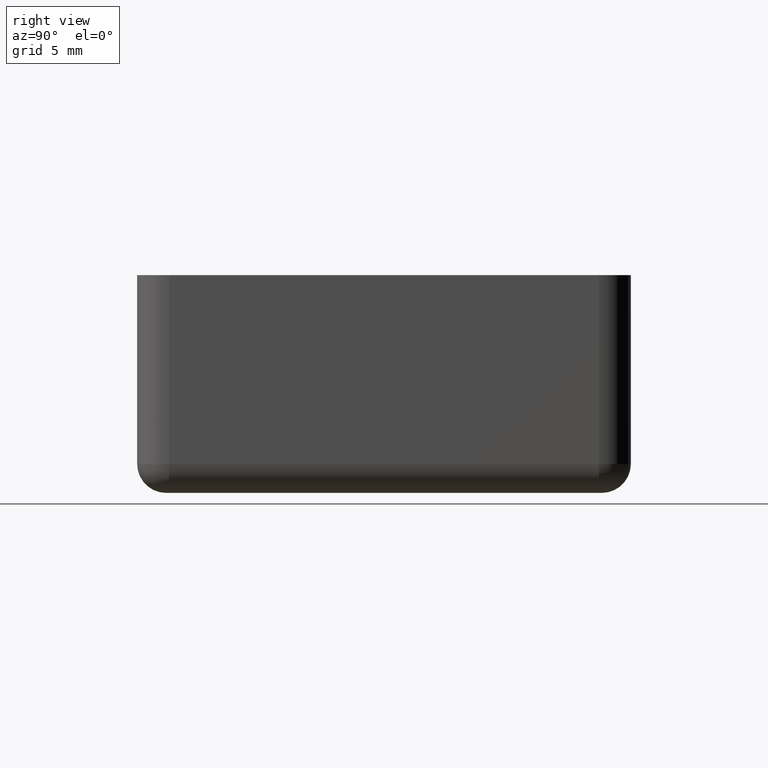
[diagram: clean part render]
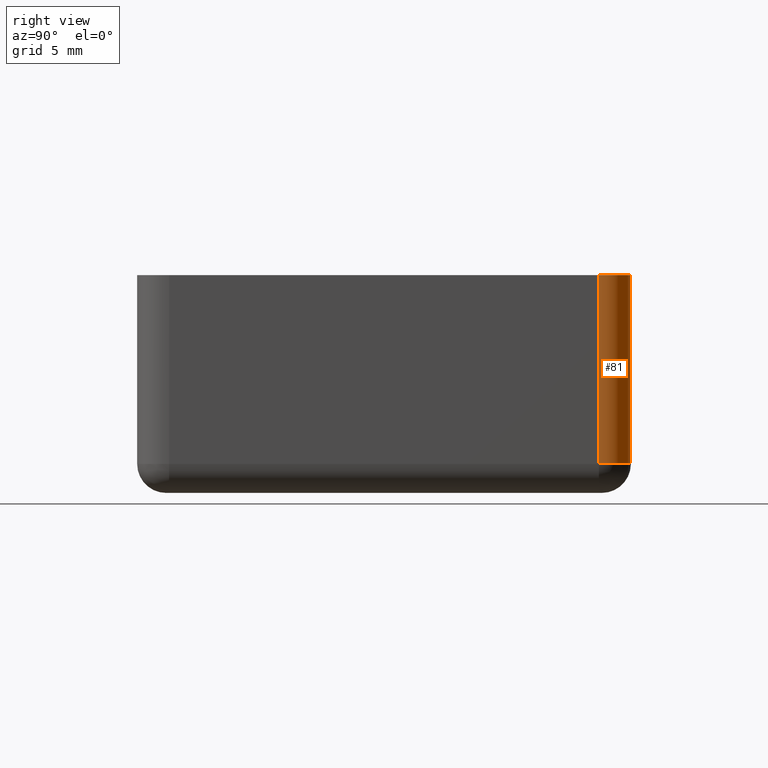
[diagram: same view with one face highlighted and labeled with its STEP entity id]
A machine part, right view. The second image highlights one B-rep face of the part: STEP entity #81.
In plain terms, the highlighted cylindrical surface (edge-blend (fillet) strip) has radius 2.2 mm, axis along (0, 0, -1).
Its self-contained STEP definition (entity closure, byte-faithful):
#81 = ADVANCED_FACE( '', ( #128 ), #129, .T. );
#128 = FACE_OUTER_BOUND( '', #207, .T. );
#129 = CYLINDRICAL_SURFACE( '', #208, 2.20000000000000 );
#207 = EDGE_LOOP( '', ( #409, #410, #411, #412 ) );
#208 = AXIS2_PLACEMENT_3D( '', #413, #414, #415 );
#409 = ORIENTED_EDGE( '', *, *, #682, .F. );
#410 = ORIENTED_EDGE( '', *, *, #683, .T. );
#411 = ORIENTED_EDGE( '', *, *, #684, .T. );
#412 = ORIENTED_EDGE( '', *, *, #641, .F. );
#413 = CARTESIAN_POINT( '', ( -0.200000000000000, -0.199999999999999, -15.0000000000000 ) );
#414 = DIRECTION( '', ( 0.000000000000000, 0.000000000000000, -1.00000000000000 ) );
#415 = DIRECTION( '', ( 1.00000000000000, -1.83690953073357E-016, 0.000000000000000 ) );
#641 = EDGE_CURVE( '', #738, #740, #741, .T. );
#682 = EDGE_CURVE( '', #815, #738, #817, .T. );
#683 = EDGE_CURVE( '', #815, #818, #819, .T. );
#684 = EDGE_CURVE( '', #818, #740, #820, .T. );
#738 = VERTEX_POINT( '', #894 );
#740 = VERTEX_POINT( '', #897 );
#741 = CIRCLE( '', #898, 2.20000000000000 );
#815 = VERTEX_POINT( '', #994 );
#817 = LINE( '', #997, #998 );
#818 = VERTEX_POINT( '', #999 );
#819 = CIRCLE( '', #1000, 2.20000000000000 );
#820 = LINE( '', #1001, #1002 );
#894 = CARTESIAN_POINT( '', ( 2.00000000000000, -0.200000000000009, 0.000000000000000 ) );
#897 = CARTESIAN_POINT( '', ( -0.200000000000000, 2.00000000000000, 0.000000000000000 ) );
#898 = AXIS2_PLACEMENT_3D( '', #1105, #1106, #1107 );
#994 = CARTESIAN_POINT( '', ( 2.00000000000000, -0.200000000000009, -13.0000000000000 ) );
#997 = CARTESIAN_POINT( '', ( 2.00000000000000, -0.200000000000009, -15.0000000000000 ) );
#998 = VECTOR( '', #1182, 1000.00000000000 );
#999 = CARTESIAN_POINT( '', ( -0.200000000000000, 2.00000000000000, -13.0000000000000 ) );
#1000 = AXIS2_PLACEMENT_3D( '', #1183, #1184, #1185 );
#1001 = CARTESIAN_POINT( '', ( -0.200000000000000, 2.00000000000000, -15.0000000000000 ) );
#1002 = VECTOR( '', #1186, 1000.00000000000 );
#1105 = CARTESIAN_POINT( '', ( -0.200000000000000, -0.199999999999999, 0.000000000000000 ) );
#1106 = DIRECTION( '', ( 0.000000000000000, 0.000000000000000, 1.00000000000000 ) );
#1107 = DIRECTION( '', ( 1.00000000000000, -1.83690953073357E-016, 0.000000000000000 ) );
#1182 = DIRECTION( '', ( 0.000000000000000, 0.000000000000000, 1.00000000000000 ) );
#1183 = CARTESIAN_POINT( '', ( -0.200000000000000, -0.199999999999999, -13.0000000000000 ) );
#1184 = DIRECTION( '', ( 0.000000000000000, 0.000000000000000, 1.00000000000000 ) );
#1185 = DIRECTION( '', ( -1.00000000000000, 1.22460635382238E-016, 0.000000000000000 ) );
#1186 = DIRECTION( '', ( 0.000000000000000, 0.000000000000000, 1.00000000000000 ) );